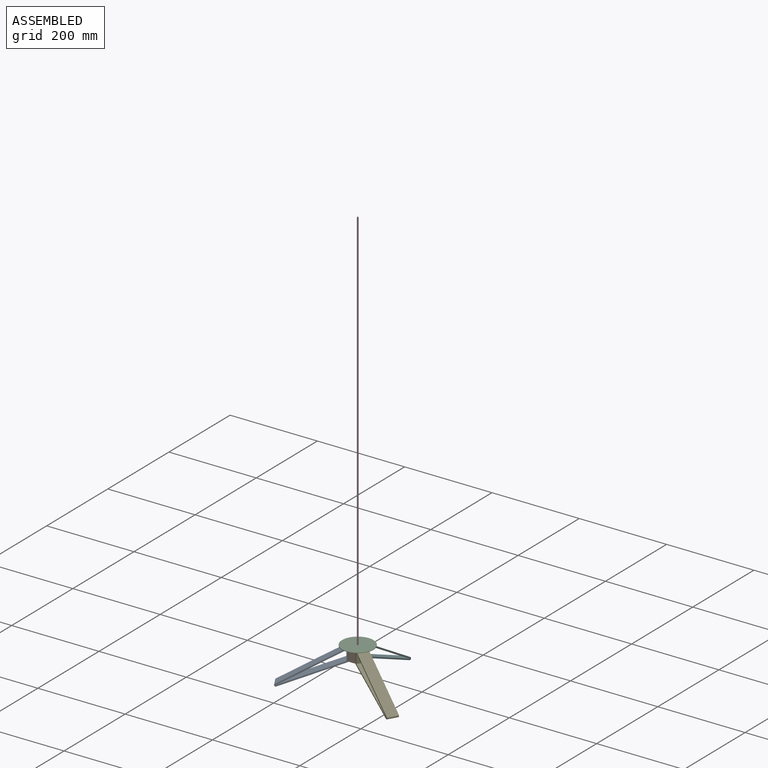
[diagram: assembled view]
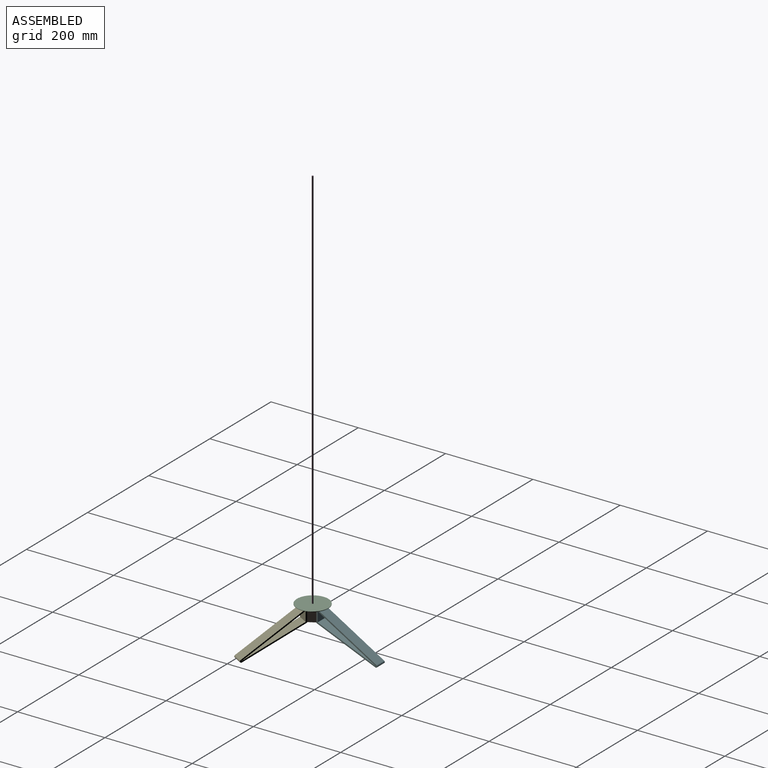
[diagram: assembled view, second angle]
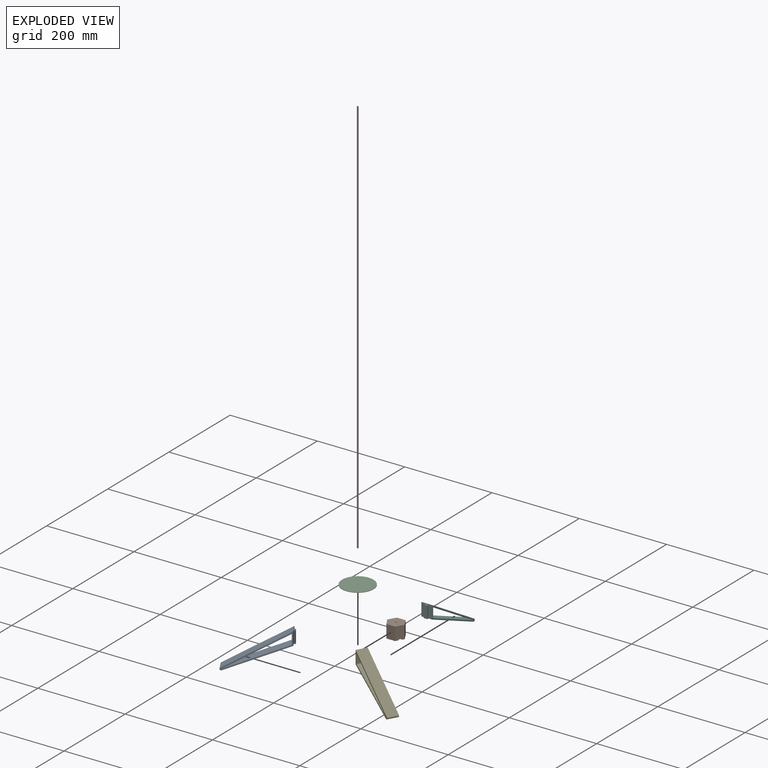
[diagram: exploded view]
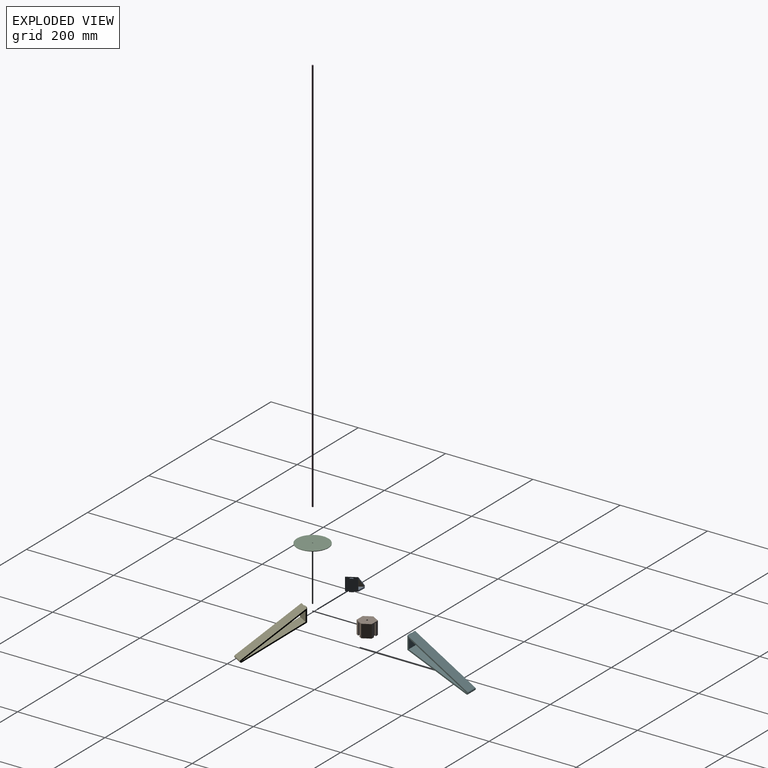
[diagram: exploded view, second angle]
ASSEMBLY  parts=6 mates=3
PART A: 14 faces, bbox 142.7x86.2x25 mm
  f0: plane 25x22.76mm, normal (1,0,0), area 569.1mm2, adj f1,f6,f7,f8
  f1: plane 133.2x77.94mm, normal (-0.51,-0.86,0), area 3858.1mm2, adj f0,f6,f7,f8
  f2: plane 30x25mm, normal (-1,0,0), area 596mm2, adj f3,f5,f7,f8,f9,f11,f12
  f3: plane 135.05x55.94mm, normal (-0.38,-0.92,0), area 3654.5mm2, adj f2,f4,f7,f8,f13
  f4: cylinder r=3mm len=25mm, axis (0,0,-1), area 225.4mm2, adj f3,f5,f7,f8
  f5: plane 137.71x80.58mm, normal (0.51,0.86,0), area 3988.9mm2, adj f2,f4,f7,f8
  f6: plane 133.2x55.17mm, normal (0.38,0.92,0), area 3604.3mm2, adj f0,f1,f7,f8
  f7: plane 139.2x86.17mm, normal (0,0,1), area 999mm2, adj f0,f1,f2,f3,f4,f5,f6
  f8: plane 139.2x86.17mm, normal (0,0,-1), area 999mm2, adj f0,f1,f2,f3,f4,f5,f6
  f9: plane 28x3.46mm, normal (0.5,0,0.87), area 112mm2, adj f2,f10,f12,f13
  f10: plane 28x9.5mm, normal (-1,0,0), area 266mm2, adj f9,f11,f12,f13
  f11: plane 28x3.46mm, normal (0.5,0,-0.87), area 112mm2, adj f2,f10,f12,f13
  f12: plane 9.5x3.46mm, normal (0,1,0), area 26mm2, adj f2,f9,f10,f11
  f13: plane 9.5x3.46mm, normal (0,-1,0), area 26mm2, adj f3,f9,f10,f11
PART B: 22 faces, bbox 40x34.6x30 mm
  f0: cylinder r=1.88mm len=28mm, axis (0,0,-1), area 329.9mm2, adj f17,f21
  f1: plane 28x4mm, normal (0,1,0), area 112mm2, adj f2,f4,f16,f18
  f2: plane 28x8.66mm, normal (0.87,-0.5,0), area 280mm2, adj f1,f3,f16,f18
  f3: plane 28x3.46mm, normal (-0.87,-0.5,0), area 112mm2, adj f2,f4,f16,f18
  f4: plane 30x17.32mm, normal (0.87,-0.5,0), area 432mm2, adj f1,f3,f5,f15,f16,f17,f18
  f5: plane 30x17.32mm, normal (0.87,0.5,0), area 600mm2, adj f4,f9,f16,f17
  f6: plane 28x3.46mm, normal (-0.87,-0.5,0), area 112mm2, adj f7,f9,f16,f20
  f7: plane 28x10mm, normal (0,1,0), area 280mm2, adj f6,f8,f16,f20
  f8: plane 28x3.46mm, normal (0.87,-0.5,0), area 112mm2, adj f7,f9,f16,f20
  f9: plane 30x20mm, normal (0,1,0), area 432mm2, adj f5,f6,f8,f10,f16,f17,f20
  f10: plane 30x17.32mm, normal (-0.87,0.5,0), area 600mm2, adj f9,f14,f16,f17
  f11: plane 28x3.46mm, normal (0.87,-0.5,0), area 112mm2, adj f12,f14,f16,f19
  f12: plane 28x8.66mm, normal (-0.87,-0.5,0), area 280mm2, adj f11,f13,f16,f19
  f13: plane 28x4mm, normal (0,1,0), area 112mm2, adj f12,f14,f16,f19
  f14: plane 30x17.32mm, normal (-0.87,-0.5,0), area 432mm2, adj f10,f11,f13,f15,f16,f17,f19
  f15: plane 30x20mm, normal (0,-1,0), area 600mm2, adj f4,f14,f16,f17
  f16: plane 40x34.64mm, normal (0,0,1), area 956.1mm2, adj f1,f2,f3,f4,f5,f6,f7,f8
  f17: plane 40x34.64mm, normal (0,0,-1), area 1028.2mm2, adj f0,f4,f5,f9,f10,f14,f15
  f18: plane 8.66x7mm, normal (0,0,1), area 27.7mm2, adj f1,f2,f3,f4
  f19: plane 8.66x7mm, normal (0,0,1), area 27.7mm2, adj f11,f12,f13,f14
  f20: plane 10x3.46mm, normal (0,0,1), area 27.7mm2, adj f6,f7,f8,f9
  f21: plane 3.75x3.75mm, normal (0,0,-1), area 11mm2, adj f0
PART C: 4 faces, bbox 72x72x1 mm
  f0: cylinder r=1.25mm len=2.5mm, axis (0,0,-1), area 7.9mm2, adj f2,f3
  f1: cylinder r=36mm len=72mm, axis (0,0,-1), area 226.2mm2, adj f2,f3
  f2: plane 72x72mm, normal (0,0,1), area 4066.6mm2, adj f0,f1
  f3: plane 72x72mm, normal (0,0,-1), area 4066.6mm2, adj f0,f1
PART D: 3 faces, bbox 3.5x3.5x914.4 mm
  f0: cylinder r=1.75mm len=914.4mm, axis (0,0,-1), area 10054.4mm2, adj f1,f2
  f1: plane 3.5x3.5mm, normal (0,0,1), area 9.6mm2, adj f0
  f2: plane 3.5x3.5mm, normal (0,0,-1), area 9.6mm2, adj f0
PART E: same geometry as A
PART F: same geometry as A
PLACE A rot(axis=(0.19,-0.69,-0.69),158.9deg) t=(-11.58,-25.68,-13.56)mm
PLACE B rot(axis=(0,1,0),180deg) t=(-2.83,-6.19,16.44)mm fixed
PLACE C rot(axis=(0,-1,0),0deg) t=(-2.83,-6.19,16.44)mm
PLACE D t=(-2.83,-6.19,-11.56)mm
PLACE E rot(axis=(0.94,-0.25,-0.25),93.8deg) t=(18.43,-4.03,-13.56)mm
PLACE F rot(axis=(0.58,0.58,0.58),120deg) t=(-15.33,11.14,-13.56)mm
MATE fastened D.f0 <-> B.f0  axis (0,0,-1) through (-2.83,-6.19,-11.56)mm
MATE fastened B.f0 <-> C.f0  axis (0,0,1) through (-2.83,-6.19,16.44)mm
MATE slider F.f12 <-> B.f20  axis (0,0,1) through (-2.83,9.25,14.44)mm
